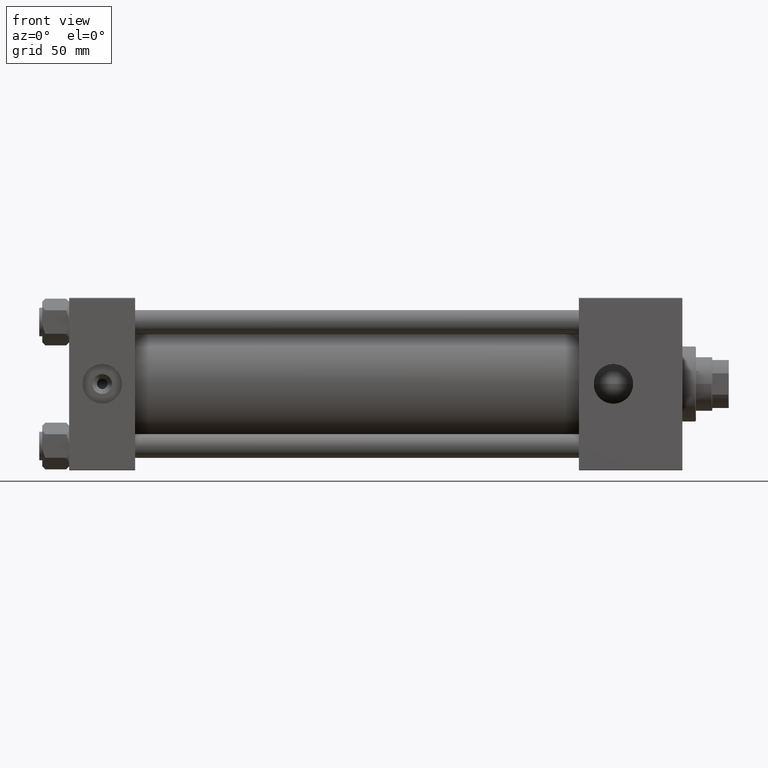
[diagram: clean part render]
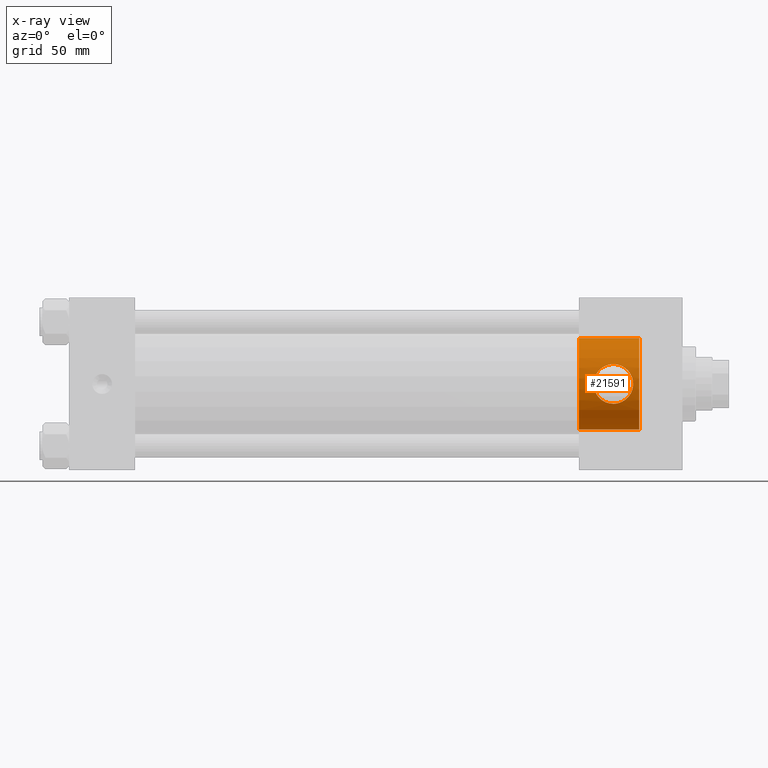
[diagram: x-ray — body ghosted, one internal face saturated and labeled with its STEP entity id]
A machine part, front view, then the same camera in x-ray: the body is ghosted and one INTERNAL B-rep face — a face not visible from any outside direction — is saturated and labeled: STEP entity #21591.
In plain terms, the highlighted cylindrical surface (partial cylindrical patch) has radius 30.5 mm, axis along (1, 0, 0).
Its self-contained STEP definition (entity closure, byte-faithful):
#675 = EDGE_CURVE ( 'NONE', #32705, #8969, #50512, .T. ) ;
#763 = VERTEX_POINT ( 'NONE', #36061 ) ;
#883 = VERTEX_POINT ( 'NONE', #31627 ) ;
#1042 = CIRCLE ( 'NONE', #19043, 30.50000000000000000 ) ;
#1568 = CARTESIAN_POINT ( 'NONE',  ( 375.0327032964905811, -30.00407358905177801, 5.492612641369674975 ) ) ;
#1814 = CARTESIAN_POINT ( 'NONE',  ( 376.0447628495107892, -30.42435429361169952, 2.189278755698943701 ) ) ;
#1827 = CARTESIAN_POINT ( 'NONE',  ( 118.2329726952411875, 0.000000000000000000, 0.000000000000000000 ) ) ;
#2065 = CARTESIAN_POINT ( 'NONE',  ( 371.7269121066913158, -28.83644685509614902, 9.939442956448850452 ) ) ;
#2077 = DIRECTION ( 'NONE',  ( 0.000000000000000000, 0.000000000000000000, -1.000000000000000000 ) ) ;
#2232 = CARTESIAN_POINT ( 'NONE',  ( 363.0000000000000000, -27.48602554026319211, -13.21999999999998110 ) ) ;
#2306 = CARTESIAN_POINT ( 'NONE',  ( 369.6476714021176235, -28.27607477382295542, 11.43513997626960332 ) ) ;
#2320 = FACE_BOUND ( 'NONE', #12972, .T. ) ;
#2492 = CARTESIAN_POINT ( 'NONE',  ( 358.7039257807618355, -27.80881603908519040, 12.53195482565464403 ) ) ;
#2503 = CARTESIAN_POINT ( 'NONE',  ( 339.9999999999999432, 0.000000000000000000, 0.000000000000000000 ) ) ;
#2666 = DIRECTION ( 'NONE',  ( 1.000000000000000000, 0.000000000000000000, 0.000000000000000000 ) ) ;
#2812 = CARTESIAN_POINT ( 'NONE',  ( 371.7216624159196954, -28.83486139504595513, -9.944026392801029957 ) ) ;
#2984 = CARTESIAN_POINT ( 'NONE',  ( 361.2583457697169820, -27.52771524361856947, 13.13437150871260428 ) ) ;
#3325 = CARTESIAN_POINT ( 'NONE',  ( 372.0416713912667319, -28.93355788007937335, -9.654060476841079819 ) ) ;
#3504 = CARTESIAN_POINT ( 'NONE',  ( 352.5057943211529619, -29.41789931641527289, 8.085460622263472175 ) ) ;
#4318 = VERTEX_POINT ( 'NONE', #14475 ) ;
#5086 = CARTESIAN_POINT ( 'NONE',  ( 353.9534498750174407, -28.93510828370554933, -9.649323598907603383 ) ) ;
#5418 = ORIENTED_EDGE ( 'NONE', *, *, #32008, .T. ) ;
#5595 = CARTESIAN_POINT ( 'NONE',  ( 351.1356631096704177, -29.93579667437074932, -5.894660407061799390 ) ) ;
#6416 = CARTESIAN_POINT ( 'NONE',  ( 373.4944844383388158, -29.41799900512065946, -8.085100585392780204 ) ) ;
#6858 = CARTESIAN_POINT ( 'NONE',  ( 349.8889115158669938, -30.45292577228614661, 1.749771945473016510 ) ) ;
#7113 = CARTESIAN_POINT ( 'NONE',  ( 350.6355720941625691, -30.13862959712757927, 4.698902454236104198 ) ) ;
#7365 = CARTESIAN_POINT ( 'NONE',  ( 118.2329726952411875, 3.735172737399427541E-15, 30.50000000000000000 ) ) ;
#8969 = VERTEX_POINT ( 'NONE', #23281 ) ;
#9266 = CARTESIAN_POINT ( 'NONE',  ( 370.0142947347168842, -28.36484899022288175, 11.21384987315751935 ) ) ;
#9445 = CARTESIAN_POINT ( 'NONE',  ( 353.0651835769630793, -29.22528454778805340, -8.732165186513750399 ) ) ;
#9677 = CARTESIAN_POINT ( 'NONE',  ( 350.2338158454376185, -30.30583300278645353, -3.461720660703628827 ) ) ;
#9751 = CARTESIAN_POINT ( 'NONE',  ( 375.7876705341999468, -30.31470776430872860, -3.466927598030849822 ) ) ;
#10012 = CARTESIAN_POINT ( 'NONE',  ( 372.9561913511360558, -29.22803557907762340, 8.739437049842015526 ) ) ;
#10191 = CARTESIAN_POINT ( 'NONE',  ( 354.9300340820393558, -28.64447636802819375, -10.47985214046850011 ) ) ;
#10435 = CARTESIAN_POINT ( 'NONE',  ( 354.2672173970505582, -28.83428332440469433, 9.961681274751235549 ) ) ;
#10512 = CARTESIAN_POINT ( 'NONE',  ( 363.8865849196063209, -27.49685012189993927, -13.19756092916641599 ) ) ;
#10865 = LINE ( 'NONE', #38324, #41162 ) ;
#11463 = CARTESIAN_POINT ( 'NONE',  ( 350.4870417805407783, -30.20003893920387483, 4.287552819491743605 ) ) ;
#12864 = CARTESIAN_POINT ( 'NONE',  ( 373.4967528676391453, -29.41882578186302766, 8.081938258306609058 ) ) ;
#12972 = EDGE_LOOP ( 'NONE', ( #14242, #46265 ) ) ;
#12979 = CIRCLE ( 'NONE', #28585, 30.50000000000000000 ) ;
#13295 = CARTESIAN_POINT ( 'NONE',  ( 354.2689524255893048, -28.83769873322246369, -9.935816979821408879 ) ) ;
#13371 = CARTESIAN_POINT ( 'NONE',  ( 376.1108884166920348, -30.45283964616873007, 1.751073242079227210 ) ) ;
#13419 = VERTEX_POINT ( 'NONE', #50116 ) ;
#13547 = CARTESIAN_POINT ( 'NONE',  ( 350.6374575343504603, -30.13786678558220444, -4.703320271410689202 ) ) ;
#13616 = CARTESIAN_POINT ( 'NONE',  ( 376.0478389474651522, -30.42567252313474668, -2.171687124408209435 ) ) ;
#13862 = CARTESIAN_POINT ( 'NONE',  ( 367.2952657678649757, -27.80849258881734443, 12.53278253679626530 ) ) ;
#13874 = CYLINDRICAL_SURFACE ( 'NONE', #45756, 30.50000000000000000 ) ;
#14242 = ORIENTED_EDGE ( 'NONE', *, *, #15604, .F. ) ;
#14475 = CARTESIAN_POINT ( 'NONE',  ( 380.2999999999999545, 0.000000000000000000, -30.50000000000000000 ) ) ;
#14534 = CARTESIAN_POINT ( 'NONE',  ( 351.1406636963275787, -29.93377229452418575, 5.906436259598289773 ) ) ;
#14612 = CARTESIAN_POINT ( 'NONE',  ( 365.1923779257763840, -27.57007713559723072, -13.04414953179167824 ) ) ;
#15128 = CARTESIAN_POINT ( 'NONE',  ( 364.7613627219218415, -27.53893847708605591, -13.10950985584732109 ) ) ;
#15604 = EDGE_CURVE ( 'NONE', #883, #13419, #25565, .T. ) ;
#16935 = CARTESIAN_POINT ( 'NONE',  ( 363.0000000000000000, -27.48602554026318501, 13.21999999999998820 ) ) ;
#17195 = CARTESIAN_POINT ( 'NONE',  ( 375.5317347824022249, -30.20651436230127729, 4.297603092604081354 ) ) ;
#17377 = CARTESIAN_POINT ( 'NONE',  ( 358.7105502547760238, -27.81563882654360853, -12.51239443096057613 ) ) ;
#17447 = CARTESIAN_POINT ( 'NONE',  ( 376.1987200341616813, -30.49075770438743405, -0.8676718968637400220 ) ) ;
#17870 = CARTESIAN_POINT ( 'NONE',  ( 361.2462684812795146, -27.52885197554176244, -13.13195033011985657 ) ) ;
#17944 = CARTESIAN_POINT ( 'NONE',  ( 370.7233822296031462, -28.54846687087108492, 10.73778964864925278 ) ) ;
#18380 = CARTESIAN_POINT ( 'NONE',  ( 350.2324881879289364, -30.30639514028141690, 3.456569789616463773 ) ) ;
#18635 = CARTESIAN_POINT ( 'NONE',  ( 362.1282647722148340, -27.48602554026320277, 13.21999999999999353 ) ) ;
#18969 = CARTESIAN_POINT ( 'NONE',  ( 370.0113799088562700, -28.36413578868934948, -11.21563918299621676 ) ) ;
#19043 = AXIS2_PLACEMENT_3D ( 'NONE', #37817, #2666, #49675 ) ;
#20645 = EDGE_CURVE ( 'NONE', #763, #32705, #12979, .T. ) ;
#21297 = CARTESIAN_POINT ( 'NONE',  ( 376.2201166248273694, -30.50005055016960753, -0.4324207619027904403 ) ) ;
#21478 = CARTESIAN_POINT ( 'NONE',  ( 351.5416513757192547, -29.77542169699081498, -6.649814669547868817 ) ) ;
#21591 = ADVANCED_FACE ( 'NONE', ( #2320, #49078 ), #13874, .F. ) ;
#21793 = CARTESIAN_POINT ( 'NONE',  ( 368.8891416004772736, -28.10741642938326379, 11.84364692807673691 ) ) ;
#22051 = CARTESIAN_POINT ( 'NONE',  ( 370.7191638403439811, -28.54733334668879863, -10.74078768598458744 ) ) ;
#22234 = CARTESIAN_POINT ( 'NONE',  ( 356.3679571881909851, -28.27240108936180008, 11.44420901544189917 ) ) ;
#22501 = CARTESIAN_POINT ( 'NONE',  ( 354.9246607830619951, -28.63943698772463975, 10.50217696469663586 ) ) ;
#22767 = CARTESIAN_POINT ( 'NONE',  ( 349.8670902725121437, -30.46195461453368836, -1.748736216047933834 ) ) ;
#23281 = CARTESIAN_POINT ( 'NONE',  ( 380.2999999999999545, 3.735172737399427541E-15, 30.50000000000000000 ) ) ;
#24932 = CARTESIAN_POINT ( 'NONE',  ( 372.0470048391393334, -28.93523070509822404, 9.649035184034524093 ) ) ;
#25104 = CARTESIAN_POINT ( 'NONE',  ( 352.5215937450377623, -29.41451473649981807, -8.071820647163601592 ) ) ;
#25169 = CARTESIAN_POINT ( 'NONE',  ( 363.8716845708778465, -27.49637901534175555, 13.19854020490741142 ) ) ;
#25565 = B_SPLINE_CURVE_WITH_KNOTS ( 'NONE', 3,
 ( #2232, #29472, #17870, #32817, #48498, #17377, #36384, #45111, #44864, #48754, #10191, #13295, #5086, #28988, #9445, #25104, #40772, #21478, #5595, #13547, #29225, #9677, #41023, #22767, #42293, #45601, #34037, #6858, #46384, #29976, #18380, #11463, #7113, #14534, #41509, #3504, #49746, #10435, #22501, #38416, #22234, #30227, #38153, #2492, #34801, #2984, #18635, #50516 ),
 .UNSPECIFIED., .F., .F.,
 ( 4, 2, 2, 2, 2, 2, 2, 2, 2, 2, 2, 2, 2, 2, 2, 2, 2, 2, 2, 2, 2, 2, 2, 4 ),
 ( 0.000000000000000000, 0.002615910341172250977, 0.003923865511758295802, 0.005231820682344340626, 0.007847731023516582929, 0.009155686194102636427, 0.01046364136468869339, 0.01177159653527474863, 0.01307955170586080559, 0.01569546204703282238, 0.01700341721761882904, 0.01831137238820483917, 0.02092728272937685249, 0.02223523789996285915, 0.02354319307054886928, 0.02485114824113487594, 0.02615910341172088607, 0.02877501375289289939, 0.03139092409406491618, 0.03400683443523692950, 0.03531478960582293269, 0.03662274477640894282, 0.03923865511758096308, 0.04185456545875296946 ),
 .UNSPECIFIED. ) ;
#25919 = CARTESIAN_POINT ( 'NONE',  ( 374.4506329856475304, -29.77249498464554023, -6.662286344075505795 ) ) ;
#27069 = EDGE_CURVE ( 'NONE', #13419, #883, #27273, .T. ) ;
#27273 = B_SPLINE_CURVE_WITH_KNOTS ( 'NONE', 3,
 ( #16935, #33367, #25169, #28801, #44445, #48821, #13862, #29542, #21793, #2306, #9266, #17944, #44936, #2065, #24932, #10012, #12864, #40598, #36702, #36961, #1568, #17195, #48573, #1814, #13371, #29059, #44697, #21297, #17447, #33128, #13616, #9751, #29293, #41094, #25919, #6416, #45671, #3325, #2812, #50344, #22051, #18969, #46458, #46201, #42632, #49821, #37972, #14612, #15128, #10512, #30308, #41581 ),
 .UNSPECIFIED., .F., .F.,
 ( 4, 2, 2, 2, 2, 2, 2, 2, 2, 2, 2, 2, 2, 2, 2, 2, 2, 2, 2, 2, 2, 2, 2, 2, 2, 4 ),
 ( 0.04185456545875296946, 0.04316126087825661317, 0.04446795629776025688, 0.04708134713676737776, 0.04838804255627093820, 0.04969473797577450558, 0.05100143339527806602, 0.05230812881478162646, 0.05492151965378874734, 0.05622821507329230084, 0.05753491049279586128, 0.06014830133180304461, 0.06145499675130662587, 0.06276169217081020713, 0.06406838759031377450, 0.06537508300981735576, 0.06798847384882450440, 0.07060186468783166691, 0.07321525552683881555, 0.07452195094634245232, 0.07582864636584607521, 0.07713534178534971197, 0.07844203720485334874, 0.08105542804386076106, 0.08236212346336438395, 0.08366881888286802071 ),
 .UNSPECIFIED. ) ;
#28585 = AXIS2_PLACEMENT_3D ( 'NONE', #2503, #33807, #50280 ) ;
#28801 = CARTESIAN_POINT ( 'NONE',  ( 364.7457717352806412, -27.53795097526185032, 13.11158184888301115 ) ) ;
#28988 = CARTESIAN_POINT ( 'NONE',  ( 353.3515647298656290, -29.12889845819639234, -9.047497550056856852 ) ) ;
#29059 = CARTESIAN_POINT ( 'NONE',  ( 376.1982536916880804, -30.49055506137071703, 0.8762146220601606528 ) ) ;
#29225 = CARTESIAN_POINT ( 'NONE',  ( 350.4899976278593385, -30.19881149110916141, -4.296371544684684629 ) ) ;
#29293 = CARTESIAN_POINT ( 'NONE',  ( 375.5322966012589632, -30.20674484256639047, -4.296135475357580447 ) ) ;
#29359 = VECTOR ( 'NONE', #50262, 1000.000000000000000 ) ;
#29472 = CARTESIAN_POINT ( 'NONE',  ( 362.1144672591965445, -27.48602554026319567, -13.21999999999998110 ) ) ;
#29542 = CARTESIAN_POINT ( 'NONE',  ( 368.4951785632724750, -28.02719974335073871, 12.03159586632440714 ) ) ;
#29976 = CARTESIAN_POINT ( 'NONE',  ( 350.1258587684075678, -30.35159100764851559, 3.035512785235340516 ) ) ;
#30227 = CARTESIAN_POINT ( 'NONE',  ( 357.1269413166685922, -28.10404756966395468, 11.85162830791337818 ) ) ;
#30256 = EDGE_CURVE ( 'NONE', #763, #4318, #10865, .T. ) ;
#30308 = CARTESIAN_POINT ( 'NONE',  ( 363.4423399219828070, -27.48602554026318145, -13.21999999999997399 ) ) ;
#31627 = CARTESIAN_POINT ( 'NONE',  ( 363.0000000000000000, -27.48602554026319211, -13.21999999999998110 ) ) ;
#32008 = EDGE_CURVE ( 'NONE', #8969, #4318, #1042, .T. ) ;
#32705 = VERTEX_POINT ( 'NONE', #35272 ) ;
#32817 = CARTESIAN_POINT ( 'NONE',  ( 359.9682283547277848, -27.64947320514371754, -12.87499841239001519 ) ) ;
#33128 = CARTESIAN_POINT ( 'NONE',  ( 376.1126975556476850, -30.45361935851585145, -1.736729073545233204 ) ) ;
#33367 = CARTESIAN_POINT ( 'NONE',  ( 363.4354478099800190, -27.48602554026320277, 13.21999999999999353 ) ) ;
#33807 = DIRECTION ( 'NONE',  ( -1.000000000000000000, 0.000000000000000000, -0.000000000000000000 ) ) ;
#34037 = CARTESIAN_POINT ( 'NONE',  ( 349.8015294766881880, -30.49064891090928242, 0.8733378184870285166 ) ) ;
#34801 = CARTESIAN_POINT ( 'NONE',  ( 359.5303389152170439, -27.69079802243237154, 12.78696705022292157 ) ) ;
#35272 = CARTESIAN_POINT ( 'NONE',  ( 339.9999999999999432, 3.735172737399427541E-15, 30.50000000000000000 ) ) ;
#36061 = CARTESIAN_POINT ( 'NONE',  ( 339.9999999999999432, 0.000000000000000000, -30.50000000000000000 ) ) ;
#36384 = CARTESIAN_POINT ( 'NONE',  ( 358.2989827054817056, -27.88238754425790589, -12.36347585249506942 ) ) ;
#36702 = CARTESIAN_POINT ( 'NONE',  ( 374.4343527404814722, -29.76894608984560975, 6.649226455900604904 ) ) ;
#36961 = CARTESIAN_POINT ( 'NONE',  ( 374.8457141925061933, -29.92936139373707150, 5.885209454646771476 ) ) ;
#37817 = CARTESIAN_POINT ( 'NONE',  ( 380.2999999999999545, 0.000000000000000000, 0.000000000000000000 ) ) ;
#37972 = CARTESIAN_POINT ( 'NONE',  ( 366.4672562472269419, -27.69092983374397221, -12.78664795889656780 ) ) ;
#38153 = CARTESIAN_POINT ( 'NONE',  ( 357.5148208641564906, -28.02529016980758669, 12.03601454843211371 ) ) ;
#38324 = CARTESIAN_POINT ( 'NONE',  ( 118.2329726952411875, 0.000000000000000000, -30.50000000000000000 ) ) ;
#38416 = CARTESIAN_POINT ( 'NONE',  ( 355.9952982216559008, -28.36245068536646841, 11.21994470187213544 ) ) ;
#40598 = CARTESIAN_POINT ( 'NONE',  ( 374.2120017036194213, -29.68402861147382055, 7.017278994872262921 ) ) ;
#40772 = CARTESIAN_POINT ( 'NONE',  ( 352.2632977736282101, -29.50776966677245028, -7.725151932871274774 ) ) ;
#41023 = CARTESIAN_POINT ( 'NONE',  ( 350.1252843439257845, -30.35183426881569702, -3.033289607200700733 ) ) ;
#41094 = CARTESIAN_POINT ( 'NONE',  ( 374.8663527884023665, -29.93658805510088428, -5.891087304201777286 ) ) ;
#41108 = ORIENTED_EDGE ( 'NONE', *, *, #20645, .T. ) ;
#41162 = VECTOR ( 'NONE', #45260, 1000.000000000000000 ) ;
#41509 = CARTESIAN_POINT ( 'NONE',  ( 351.5496138121139325, -29.77239982286499753, 6.662708342137404038 ) ) ;
#41581 = CARTESIAN_POINT ( 'NONE',  ( 363.0000000000000000, -27.48602554026319211, -13.21999999999998110 ) ) ;
#42293 = CARTESIAN_POINT ( 'NONE',  ( 349.7804872526993449, -30.49978880393829073, -0.8828561253888623783 ) ) ;
#42632 = CARTESIAN_POINT ( 'NONE',  ( 368.4966759412652095, -28.02747652100600106, -12.03095970967389228 ) ) ;
#43275 = EDGE_LOOP ( 'NONE', ( #41108, #48954, #5418, #46985 ) ) ;
#44445 = CARTESIAN_POINT ( 'NONE',  ( 365.1839074582774174, -27.56935746262542608, 13.04567405714078276 ) ) ;
#44697 = CARTESIAN_POINT ( 'NONE',  ( 376.2198824214073625, -30.49994903642794952, 0.4395225290285834641 ) ) ;
#44864 = CARTESIAN_POINT ( 'NONE',  ( 356.3485340159662087, -28.27097215903815908, -11.45712991988678375 ) ) ;
#44936 = CARTESIAN_POINT ( 'NONE',  ( 371.0658443972802729, -28.64331541826130945, 10.48301842797574146 ) ) ;
#45111 = CARTESIAN_POINT ( 'NONE',  ( 357.1030511939566168, -28.10055322374290299, -11.86343920679241215 ) ) ;
#45260 = DIRECTION ( 'NONE',  ( 1.000000000000000000, -0.000000000000000000, -0.000000000000000000 ) ) ;
#45601 = CARTESIAN_POINT ( 'NONE',  ( 349.7797594189697179, -30.50010427805971602, 0.4304381874641614036 ) ) ;
#45671 = CARTESIAN_POINT ( 'NONE',  ( 372.9526268825349575, -29.22679903910049859, -8.743617048434083827 ) ) ;
#45756 = AXIS2_PLACEMENT_3D ( 'NONE', #1827, #49585, #2077 ) ;
#46201 = CARTESIAN_POINT ( 'NONE',  ( 368.8892449600005534, -28.10745194542969472, -11.84355006586338810 ) ) ;
#46265 = ORIENTED_EDGE ( 'NONE', *, *, #27069, .F. ) ;
#46384 = CARTESIAN_POINT ( 'NONE',  ( 349.9540722133864961, -30.42485490611447574, 2.182113312085350199 ) ) ;
#46458 = CARTESIAN_POINT ( 'NONE',  ( 369.6456046801378079, -28.27560273858751927, -11.43629410241070055 ) ) ;
#46985 = ORIENTED_EDGE ( 'NONE', *, *, #30256, .F. ) ;
#48498 = CARTESIAN_POINT ( 'NONE',  ( 359.5462841827262537, -27.69907105226466371, -12.76836875118539361 ) ) ;
#48573 = CARTESIAN_POINT ( 'NONE',  ( 375.7856444698896894, -30.31385640335704679, 3.472349718865140655 ) ) ;
#48754 = CARTESIAN_POINT ( 'NONE',  ( 355.2774297271431578, -28.54821812984658891, -10.73848987592146464 ) ) ;
#48821 = CARTESIAN_POINT ( 'NONE',  ( 366.4680358218715241, -27.69083871833039012, 12.78685970456080234 ) ) ;
#48954 = ORIENTED_EDGE ( 'NONE', *, *, #675, .T. ) ;
#49078 = FACE_OUTER_BOUND ( 'NONE', #43275, .T. ) ;
#49585 = DIRECTION ( 'NONE',  ( 1.000000000000000000, -0.000000000000000000, -0.000000000000000000 ) ) ;
#49675 = DIRECTION ( 'NONE',  ( 0.000000000000000000, 0.000000000000000000, -1.000000000000000000 ) ) ;
#49746 = CARTESIAN_POINT ( 'NONE',  ( 353.0589896527375231, -29.22290351019301724, 8.756306246684257388 ) ) ;
#49821 = CARTESIAN_POINT ( 'NONE',  ( 367.2931035455047208, -27.80809078274621982, -12.53370710140857369 ) ) ;
#50116 = CARTESIAN_POINT ( 'NONE',  ( 363.0000000000000000, -27.48602554026318501, 13.21999999999998820 ) ) ;
#50262 = DIRECTION ( 'NONE',  ( 1.000000000000000000, -0.000000000000000000, -0.000000000000000000 ) ) ;
#50280 = DIRECTION ( 'NONE',  ( 0.000000000000000000, 0.000000000000000000, 1.000000000000000000 ) ) ;
#50344 = CARTESIAN_POINT ( 'NONE',  ( 371.0611709188349892, -28.64200260032307455, -10.48659046665410877 ) ) ;
#50512 = LINE ( 'NONE', #7365, #29359 ) ;
#50516 = CARTESIAN_POINT ( 'NONE',  ( 363.0000000000000000, -27.48602554026318501, 13.21999999999998820 ) ) ;